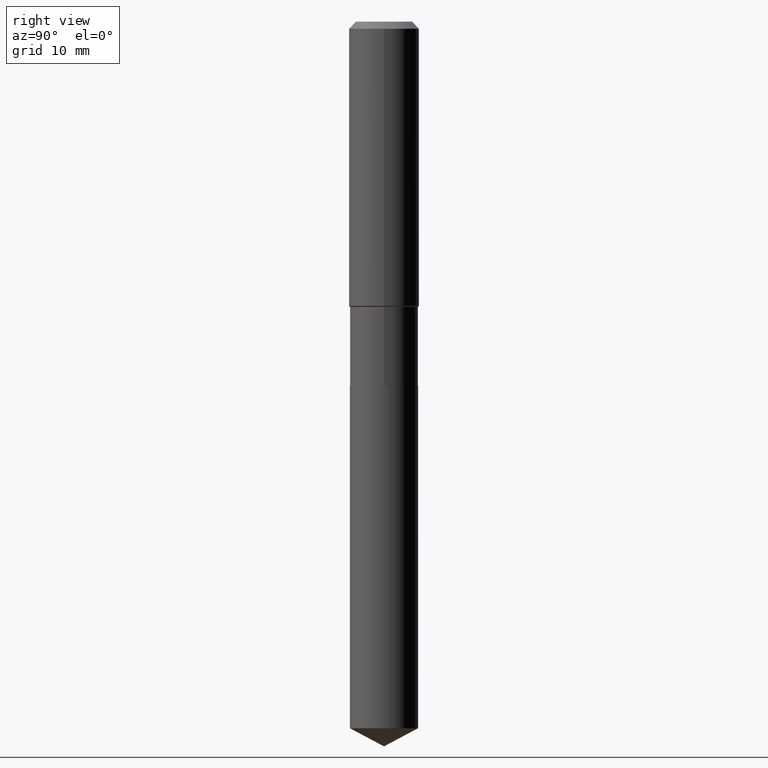
[diagram: clean part render]
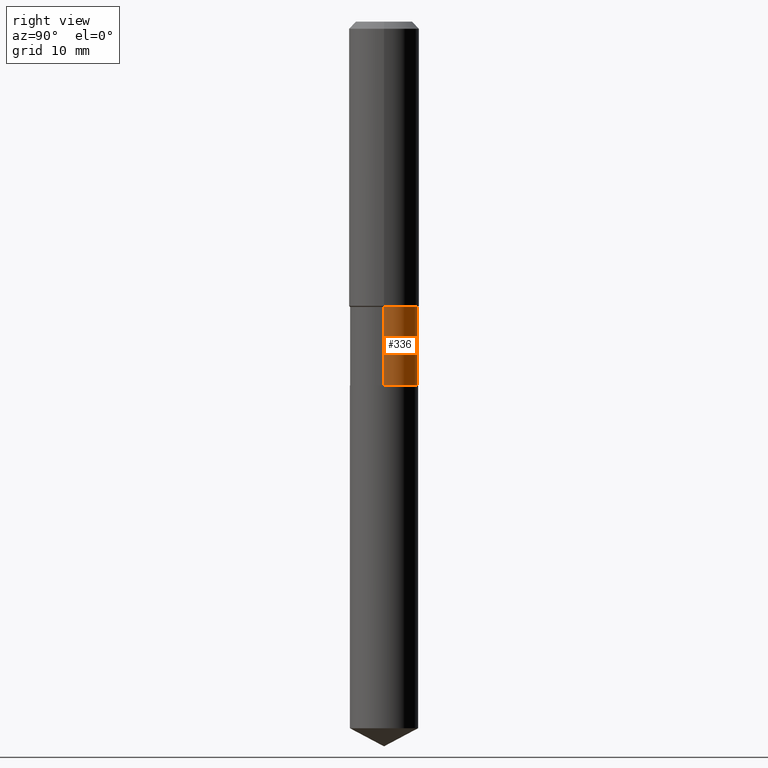
[diagram: same view with one face highlighted and labeled with its STEP entity id]
A machine part, right view. The second image highlights one B-rep face of the part: STEP entity #336.
In plain terms, the highlighted cylindrical surface (edge-blend (fillet) strip) has radius 4.8501 mm, axis along (-0, 0, 1).
Its self-contained STEP definition (entity closure, byte-faithful):
#10 = EDGE_CURVE ( 'NONE', #402, #484, #294, .T. ) ;
#31 = DIRECTION ( 'NONE',  ( -2.445468806185136597E-29, 3.491481338843145583E-15, 1.000000000000000000 ) ) ;
#35 = ORIENTED_EDGE ( 'NONE', *, *, #10, .T. ) ;
#55 = CYLINDRICAL_SURFACE ( 'NONE', #269, 0.1909499999999999809 ) ;
#95 = DIRECTION ( 'NONE',  ( 1.000000000000000000, -6.982962677686265133E-15, 0.000000000000000000 ) ) ;
#101 = ORIENTED_EDGE ( 'NONE', *, *, #358, .F. ) ;
#106 = CIRCLE ( 'NONE', #278, 0.1909499999999999531 ) ;
#124 = DIRECTION ( 'NONE',  ( -2.445468806185136597E-29, 3.491481338843145583E-15, 1.000000000000000000 ) ) ;
#141 = VECTOR ( 'NONE', #433, 39.37007874015748143 ) ;
#144 = EDGE_LOOP ( 'NONE', ( #35, #149, #311, #101 ) ) ;
#149 = ORIENTED_EDGE ( 'NONE', *, *, #467, .T. ) ;
#158 = CARTESIAN_POINT ( 'NONE',  ( 0.1909499999999999809, -1.333396723304192546E-15, 9.311059553382337160E-30 ) ) ;
#161 = CARTESIAN_POINT ( 'NONE',  ( -0.1909499999999999531, -4.982177590802761889E-15, -1.596200000000000285 ) ) ;
#209 = CARTESIAN_POINT ( 'NONE',  ( -0.1909499999999999809, 1.356781353933911169E-15, -9.392706554841740811E-30 ) ) ;
#250 = LINE ( 'NONE', #209, #333 ) ;
#253 = AXIS2_PLACEMENT_3D ( 'NONE', #446, #31, #95 ) ;
#269 = AXIS2_PLACEMENT_3D ( 'NONE', #272, #124, #387 ) ;
#272 = CARTESIAN_POINT ( 'NONE',  ( 0.000000000000000000, 0.000000000000000000, 0.000000000000000000 ) ) ;
#273 = VERTEX_POINT ( 'NONE', #161 ) ;
#278 = AXIS2_PLACEMENT_3D ( 'NONE', #329, #361, #480 ) ;
#294 = CIRCLE ( 'NONE', #253, 0.1909500000000000086 ) ;
#311 = ORIENTED_EDGE ( 'NONE', *, *, #481, .F. ) ;
#318 = CARTESIAN_POINT ( 'NONE',  ( 0.1909499999999999531, -6.906499236365622209E-15, -1.596200000000000285 ) ) ;
#329 = CARTESIAN_POINT ( 'NONE',  ( 3.903457308432716066E-29, -5.573102513061429663E-15, -1.596200000000000285 ) ) ;
#333 = VECTOR ( 'NONE', #445, 39.37007874015748143 ) ;
#336 = ADVANCED_FACE ( 'NONE', ( #391 ), #55, .T. ) ;
#358 = EDGE_CURVE ( 'NONE', #402, #462, #470, .T. ) ;
#361 = DIRECTION ( 'NONE',  ( -2.445468806185136597E-29, 3.491481338843145583E-15, 1.000000000000000000 ) ) ;
#387 = DIRECTION ( 'NONE',  ( 1.000000000000000000, -6.982962677686266711E-15, 4.876176775795935232E-29 ) ) ;
#391 = FACE_OUTER_BOUND ( 'NONE', #144, .T. ) ;
#396 = CARTESIAN_POINT ( 'NONE',  ( -0.1909500000000000086, -4.982177590802761100E-15, -2.034899999999999931 ) ) ;
#402 = VERTEX_POINT ( 'NONE', #483 ) ;
#433 = DIRECTION ( 'NONE',  ( -2.445468806185136877E-29, 3.491481338843145188E-15, 1.000000000000000000 ) ) ;
#445 = DIRECTION ( 'NONE',  ( -2.445468806185136877E-29, 3.491481338843145188E-15, 1.000000000000000000 ) ) ;
#446 = CARTESIAN_POINT ( 'NONE',  ( 4.976284473706134257E-29, -7.104815376411916848E-15, -2.034899999999999931 ) ) ;
#462 = VERTEX_POINT ( 'NONE', #318 ) ;
#467 = EDGE_CURVE ( 'NONE', #484, #273, #250, .T. ) ;
#470 = LINE ( 'NONE', #158, #141 ) ;
#480 = DIRECTION ( 'NONE',  ( 1.000000000000000000, -6.982962677686266711E-15, 0.000000000000000000 ) ) ;
#481 = EDGE_CURVE ( 'NONE', #462, #273, #106, .T. ) ;
#483 = CARTESIAN_POINT ( 'NONE',  ( 0.1909500000000000086, -8.438212099716109394E-15, -2.034899999999999931 ) ) ;
#484 = VERTEX_POINT ( 'NONE', #396 ) ;